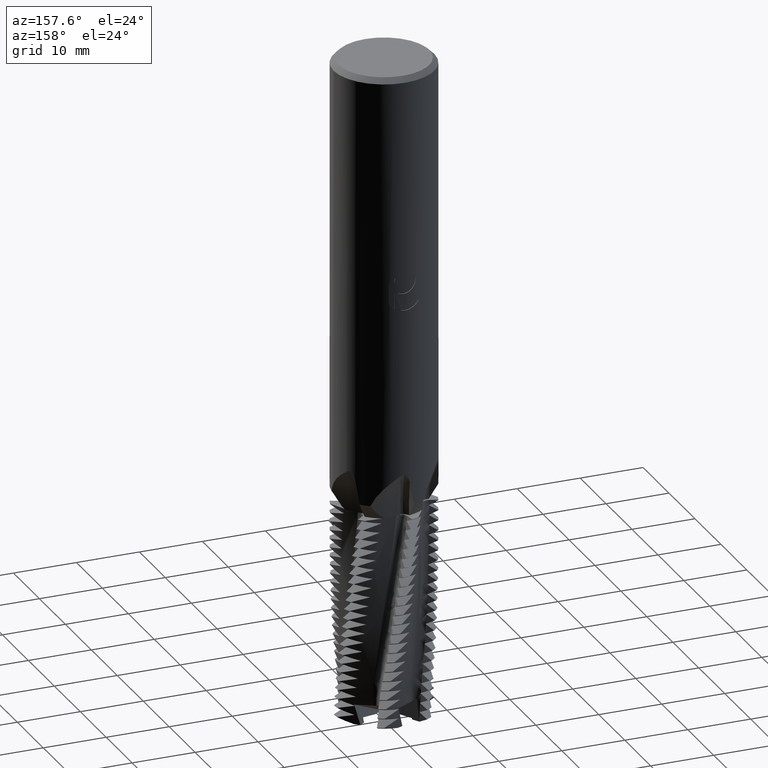
[diagram: clean part render]
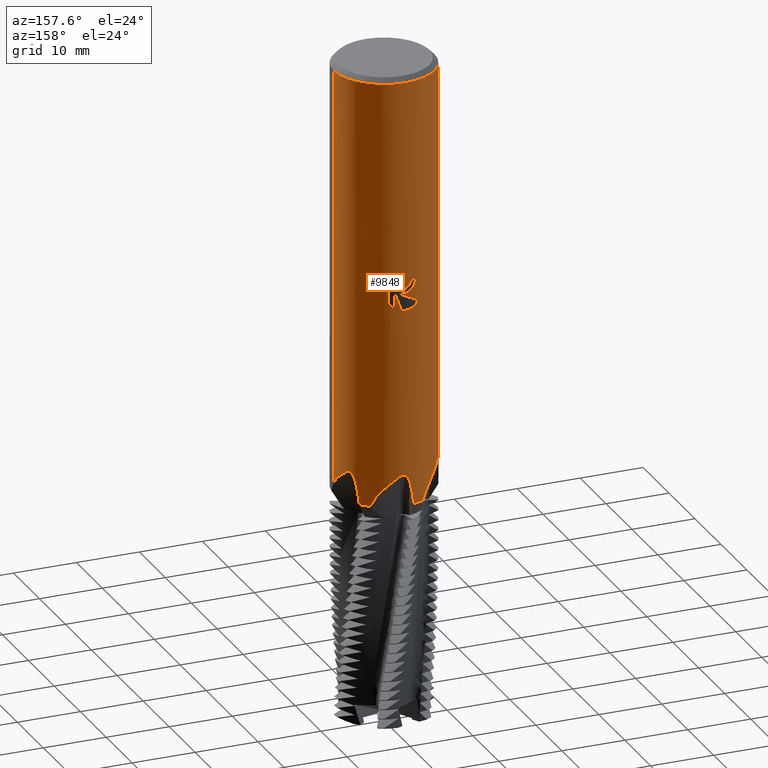
[diagram: same view with one face highlighted and labeled with its STEP entity id]
A machine part, auxiliary view. The second image highlights one B-rep face of the part: STEP entity #9848.
In plain terms, the highlighted cylindrical surface (partial cylindrical patch) has radius 8 mm, axis along (-0, -0, 1).
Its self-contained STEP definition (entity closure, byte-faithful):
#3558=EDGE_CURVE('',#5002,#3954,#10561,.T.);
#3760=VERTEX_POINT('',#10782);
#3790=EDGE_CURVE('',#5252,#5672,#10818,.T.);
#3902=VERTEX_POINT('',#10940);
#3954=VERTEX_POINT('',#10996);
#3968=VERTEX_POINT('',#11010);
#4220=VERTEX_POINT('',#11277);
#4240=VERTEX_POINT('',#11300);
#4420=VERTEX_POINT('',#11498);
#4524=EDGE_CURVE('',#4806,#9842,#11611,.T.);
#4612=EDGE_CURVE('',#6704,#3968,#11710,.T.);
#4806=VERTEX_POINT('',#11917);
#4970=VERTEX_POINT('',#12095);
#5002=VERTEX_POINT('',#12132);
#5050=EDGE_CURVE('',#3902,#6976,#12187,.T.);
#5070=VERTEX_POINT('',#12209);
#5142=EDGE_CURVE('',#9724,#9842,#12285,.T.);
#5242=EDGE_CURVE('',#6578,#8522,#12397,.T.);
#5252=VERTEX_POINT('',#12408);
#5348=VERTEX_POINT('',#12507);
#5446=EDGE_CURVE('',#3968,#9724,#12614,.T.);
#5672=VERTEX_POINT('',#12854);
#5768=EDGE_CURVE('',#7158,#8456,#12955,.T.);
#5886=EDGE_CURVE('',#5070,#6704,#13084,.T.);
#5892=EDGE_CURVE('',#9770,#8562,#13090,.T.);
#6020=EDGE_CURVE('',#8522,#7948,#13229,.T.);
#6288=EDGE_CURVE('',#6968,#8002,#13515,.T.);
#6362=EDGE_CURVE('',#8562,#9298,#13594,.T.);
#6534=EDGE_CURVE('',#10364,#5348,#13779,.T.);
#6574=EDGE_CURVE('',#9522,#4970,#13823,.T.);
#6578=VERTEX_POINT('',#13827);
#6586=VERTEX_POINT('',#13835);
#6704=VERTEX_POINT('',#13964);
#6872=EDGE_CURVE('',#9770,#4240,#14141,.T.);
#6952=EDGE_CURVE('',#7948,#7962,#14228,.T.);
#6968=VERTEX_POINT('',#14246);
#6976=VERTEX_POINT('',#14254);
#6980=EDGE_CURVE('',#7306,#4970,#14258,.T.);
#6984=EDGE_CURVE('',#6586,#4420,#14262,.T.);
#7092=EDGE_CURVE('',#3760,#6578,#14379,.T.);
#7158=VERTEX_POINT('',#14450);
#7306=VERTEX_POINT('',#14613);
#7572=EDGE_CURVE('',#8456,#4240,#14910,.T.);
#7712=EDGE_CURVE('',#8002,#3760,#15060,.T.);
#7736=EDGE_CURVE('',#4220,#6968,#15085,.T.);
#7948=VERTEX_POINT('',#15315);
#7962=VERTEX_POINT('',#15332);
#8002=VERTEX_POINT('',#15373);
#8376=EDGE_CURVE('',#4420,#3902,#15785,.T.);
#8456=VERTEX_POINT('',#15871);
#8522=VERTEX_POINT('',#15945);
#8562=VERTEX_POINT('',#15991);
#8584=EDGE_CURVE('',#9522,#5672,#16013,.T.);
#8928=EDGE_CURVE('',#4806,#10246,#16381,.T.);
#9262=EDGE_CURVE('',#5070,#5348,#16752,.T.);
#9298=VERTEX_POINT('',#16791);
#9376=EDGE_CURVE('',#5252,#10364,#16875,.T.);
#9522=VERTEX_POINT('',#17035);
#9532=EDGE_CURVE('',#10246,#7158,#17046,.T.);
#9722=EDGE_CURVE('',#3954,#6586,#17257,.T.);
#9724=VERTEX_POINT('',#17259);
#9770=VERTEX_POINT('',#17306);
#9842=VERTEX_POINT('',#17385);
#9848=ADVANCED_FACE('',(#17391,#17392),#17393,.T.);
#10038=EDGE_CURVE('',#9298,#7306,#17602,.T.);
#10192=EDGE_CURVE('',#7962,#5002,#17770,.T.);
#10246=VERTEX_POINT('',#17831);
#10288=EDGE_CURVE('',#6976,#4220,#17875,.T.);
#10364=VERTEX_POINT('',#17955);
#10561=ELLIPSE('',#18253,8.91942745634288,8.0);
#10782=CARTESIAN_POINT('',(-1.8802245565249E-016,8.0,-33.8191445531285));
#10818=LINE('',#19436,#19437);
#10940=CARTESIAN_POINT('',(1.55299694437864,7.84781501379528,-34.3464767267274));
#10996=CARTESIAN_POINT('',(-2.37698266952416,7.63871411880179,-36.2170318033723));
#11010=CARTESIAN_POINT('',(6.97791354918908,3.91263625961367,-63.817694354937));
#11277=CARTESIAN_POINT('',(2.37726233655258,7.63862708758639,-36.0714056869233));
#11300=CARTESIAN_POINT('',(-1.4976536572308,7.85856434235816,-68.7045710167406));
#11498=CARTESIAN_POINT('',(0.515738892185806,7.98335852853215,-37.3330362615963));
#11611=CIRCLE('',#22049,8.0);
#11710=B_SPLINE_CURVE_WITH_KNOTS('',3,(#22424,#22425,#22426,#22427,#22428,#22429,#22430,#22431,#22432,#22433,#22434,#22435,#22436,#22437,#22438,#22439,#22440,#22441,#22442,#22443,#22444,#22445,#22446,#22447,#22448,#22449,#22450,#22451,#22452,#22453,#22454,#22455,#22456,#22457,#22458,#22459),.UNSPECIFIED.,.F.,.F.,(4,2,2,2,2,2,2,2,2,2,2,2,2,2,2,2,2,4),(0.0,0.157815562105349,0.466565409330984,1.19660584265931,2.75589115525819,3.48400899364296,4.01480035797233,4.37946236362999,4.6568810433974,4.91748751627334,5.22104721463338,5.66473858694207,6.3444516261689,7.33499248970474,8.84830442451659,9.7887735366134,10.1440992564661,10.2647681078589),.UNSPECIFIED.);
#11917=CARTESIAN_POINT('',(4.80586229631507,6.39559907974672,-68.7045710167407));
#12095=CARTESIAN_POINT('',(-7.55454318637212,2.63227605794655,-68.7045710167407));
#12132=CARTESIAN_POINT('',(1.01889250750651,7.9348508529239,-34.5428088293916));
#12187=LINE('',#24718,#24719);
#12209=CARTESIAN_POINT('',(8.0,6.09330457802208E-010,-67.0434697043448));
#12285=B_SPLINE_CURVE_WITH_KNOTS('',3,(#25031,#25032,#25033,#25034,#25035,#25036,#25037,#25038,#25039,#25040,#25041,#25042,#25043,#25044,#25045,#25046,#25047,#25048),.UNSPECIFIED.,.F.,.F.,(4,2,2,2,2,2,2,2,4),(0.0,2.67743050786404,5.35486101572808,8.03229152359211,10.7097220314562,13.3871525393222,16.0645830471883,18.7420135550543,21.4194440629204),.UNSPECIFIED.);
#12397=B_SPLINE_CURVE_WITH_KNOTS('',3,(#25475,#25476,#25477,#25478,#25479,#25480,#25481,#25482,#25483,#25484,#25485,#25486,#25487,#25488,#25489,#25490,#25491,#25492,#25493,#25494,#25495,#25496,#25497,#25498,#25499,#25500,#25501),.UNSPECIFIED.,.F.,.F.,(4,2,3,2,2,2,2,2,2,2,2,2,4),(-0.964810488509541,-0.482405244254771,0.0,0.482405244254771,0.964810488509542,1.44846427387298,1.93211805923641,2.41366917639697,2.89522029355752,3.37739163392261,3.8595629742877,4.34173431465278,4.82390565501787),.UNSPECIFIED.);
#12408=CARTESIAN_POINT('',(-8.0,-9.79684789774845E-016,-0.799999999999997));
#12507=CARTESIAN_POINT('',(8.0,9.79685376340959E-016,-0.799999999999997));
#12614=B_SPLINE_CURVE_WITH_KNOTS('',3,(#26246,#26247,#26248,#26249,#26250,#26251,#26252,#26253,#26254,#26255,#26256,#26257,#26258,#26259,#26260,#26261,#26262,#26263,#26264,#26265,#26266,#26267,#26268,#26269,#26270,#26271,#26272,#26273,#26274,#26275,#26276,#26277,#26278,#26279,#26280,#26281),.UNSPECIFIED.,.F.,.F.,(4,2,2,2,2,2,2,2,2,2,2,2,2,2,2,2,2,4),(0.0,0.157815562105349,0.466565409330984,1.19660584265931,2.75589115525819,3.48400899364296,4.01480035797233,4.37946236362999,4.6568810433974,4.91748751627334,5.22104721463338,5.66473858694207,6.3444516261689,7.33499248970474,8.84830442451659,9.7887735366134,10.1440992564661,10.2647681078589),.UNSPECIFIED.);
#12854=CARTESIAN_POINT('',(-8.0,-6.09986703106225E-010,-67.043469704343));
#12955=B_SPLINE_CURVE_WITH_KNOTS('',3,(#27609,#27610,#27611,#27612,#27613,#27614,#27615,#27616,#27617,#27618,#27619,#27620,#27621,#27622,#27623,#27624,#27625,#27626,#27627,#27628,#27629,#27630,#27631,#27632,#27633,#27634,#27635,#27636,#27637,#27638,#27639,#27640,#27641,#27642,#27643,#27644),.UNSPECIFIED.,.F.,.F.,(4,2,2,2,2,2,2,2,2,2,2,2,2,2,2,2,2,4),(0.0,0.157408050472072,0.464719535030816,1.1901755937542,2.75286233472595,3.48006284737341,4.00837097079166,4.37244889220426,4.64944836108742,4.90930479053725,5.21108687261704,5.65093506910702,6.32325045934717,7.30204643202879,8.77923479512313,9.72838035789737,10.0941222077446,10.2225123220661),.UNSPECIFIED.);
#13084=B_SPLINE_CURVE_WITH_KNOTS('',3,(#28090,#28091,#28092,#28093,#28094,#28095,#28096,#28097,#28098,#28099),.UNSPECIFIED.,.F.,.F.,(4,2,2,2,4),(0.0,2.75342930571083,5.46399056086642,7.07225821111837,8.78411463224626),.UNSPECIFIED.);
#13090=B_SPLINE_CURVE_WITH_KNOTS('',3,(#28107,#28108,#28109,#28110,#28111,#28112,#28113,#28114,#28115,#28116),.UNSPECIFIED.,.F.,.F.,(4,2,2,2,4),(0.0,2.58425688319315,5.64734236203495,7.16510144745819,8.66638798212551),.UNSPECIFIED.);
#13229=CIRCLE('',#28593,8.0);
#13515=B_SPLINE_CURVE_WITH_KNOTS('',3,(#29559,#29560,#29561,#29562,#29563,#29564,#29565,#29566,#29567,#29568),.UNSPECIFIED.,.F.,.F.,(4,2,2,2,4),(1.10176702782719,1.65265054174078,2.20353405565438,2.75364233968908,3.30375062372378),.UNSPECIFIED.);
#13594=B_SPLINE_CURVE_WITH_KNOTS('',3,(#29783,#29784,#29785,#29786,#29787,#29788,#29789,#29790,#29791,#29792,#29793,#29794,#29795,#29796,#29797,#29798,#29799,#29800,#29801,#29802,#29803,#29804,#29805,#29806,#29807,#29808,#29809,#29810,#29811,#29812,#29813,#29814,#29815,#29816,#29817,#29818),.UNSPECIFIED.,.F.,.F.,(4,2,2,2,2,2,2,2,2,2,2,2,2,2,2,2,2,4),(0.0,0.160213799384692,0.47774892752722,1.23626283899538,2.77698913136736,3.50605406287483,4.02416127779537,4.39552597648045,4.67392566861984,4.93432421533096,5.23682030147333,5.6798558798747,6.36173216157633,7.35795833366179,9.01150108649459,9.8879404359031,10.2112185755558,10.3017279144792),.UNSPECIFIED.);
#13779=CIRCLE('',#30484,8.0);
#13823=CIRCLE('',#30592,8.0);
#13827=CARTESIAN_POINT('',(-0.864673678362767,7.95313393763406,-33.1436155518197));
#13835=CARTESIAN_POINT('',(4.72523410217066E-015,8.0,-37.3884895257048));
#13964=CARTESIAN_POINT('',(7.30973835412202,3.25080377664933,-64.0423889109165));
#14141=CIRCLE('',#31494,8.0);
#14228=B_SPLINE_CURVE_WITH_KNOTS('',3,(#31761,#31762,#31763,#31764,#31765,#31766,#31767,#31768,#31769,#31770,#31771,#31772,#31773,#31774,#31775,#31776,#31777,#31778,#31779,#31780,#31781,#31782,#31783,#31784),.UNSPECIFIED.,.F.,.F.,(4,2,2,2,2,2,2,2,2,2,2,4),(5.97435832235815,6.37236227205793,6.77036622175771,7.16837017145749,7.56637412115727,7.96437807085704,8.3613675291748,8.75835698749257,9.15534644581033,9.55233590412809,9.95206539171455,10.351794879301),.UNSPECIFIED.);
#14246=CARTESIAN_POINT('',(2.37726233655257,7.63862708758639,-32.9156416642848));
#14254=CARTESIAN_POINT('',(1.55299694437863,7.84781501379528,-36.9044180932069));
#14258=B_SPLINE_CURVE_WITH_KNOTS('',3,(#31836,#31837,#31838,#31839,#31840,#31841,#31842,#31843,#31844,#31845,#31846,#31847,#31848,#31849,#31850,#31851,#31852,#31853,#31854,#31855,#31856,#31857,#31858,#31859,#31860,#31861,#31862,#31863,#31864,#31865,#31866,#31867,#31868,#31869),.UNSPECIFIED.,.F.,.F.,(4,2,2,2,2,2,2,2,2,2,2,2,2,2,2,2,4),(0.0,2.28232419335133,4.56464838670266,6.84697258005399,9.12929677340532,11.4116209667567,13.693945160108,15.9762693534593,18.2585935468106,20.540917740161,22.8232419335114,25.1055661268618,27.3878903202122,29.6702145135626,31.952538706913,34.2348629002634,36.5171870936137),.UNSPECIFIED.);
#14262=B_SPLINE_CURVE_WITH_KNOTS('',3,(#31874,#31875,#31876,#31877,#31878,#31879,#31880,#31881,#31882,#31883,#31884,#31885,#31886,#31887,#31888,#31889),.UNSPECIFIED.,.F.,.F.,(4,2,2,2,2,2,2,4),(10.4658549410191,11.0169082977644,11.5680368003315,12.1191653028987,12.6702938054658,13.2214223080329,13.7715306240718,14.3216389401107),.UNSPECIFIED.);
#14379=B_SPLINE_CURVE_WITH_KNOTS('',3,(#32251,#32252,#32253,#32254,#32255,#32256,#32257,#32258,#32259,#32260,#32261,#32262,#32263,#32264,#32265,#32266,#32267,#32268,#32269,#32270,#32271,#32272,#32273,#32274,#32275,#32276,#32277),.UNSPECIFIED.,.F.,.F.,(4,2,3,2,2,2,2,2,2,2,2,2,4),(-0.964810488509541,-0.482405244254771,0.0,0.482405244254771,0.964810488509542,1.44846427387298,1.93211805923641,2.41366917639697,2.89522029355752,3.37739163392261,3.8595629742877,4.34173431465278,4.82390565501787),.UNSPECIFIED.);
#14450=CARTESIAN_POINT('',(0.100514378000988,7.99936852881621,-63.817694354937));
#14613=CARTESIAN_POINT('',(-7.31908434808403,3.22970653552787,-65.2931701812471));
#14910=B_SPLINE_CURVE_WITH_KNOTS('',3,(#33981,#33982,#33983,#33984,#33985,#33986,#33987,#33988,#33989,#33990,#33991,#33992,#33993,#33994,#33995,#33996,#33997,#33998,#33999,#34000,#34001,#34002,#34003,#34004,#34005,#34006,#34007,#34008,#34009,#34010,#34011,#34012,#34013,#34014),.UNSPECIFIED.,.F.,.F.,(4,2,2,2,2,2,2,2,2,2,2,2,2,2,2,2,4),(0.0,2.1655676774591,4.33113535491819,6.49670303237729,8.66227070983639,10.8278383872955,12.9934060647546,15.1589737422137,17.3245414196728,19.4901090971319,21.655676774591,23.8212444520501,25.9868121295092,28.1523798069683,30.3179474844274,32.4835151618865,34.6490828393456),.UNSPECIFIED.);
#15060=B_SPLINE_CURVE_WITH_KNOTS('',3,(#34467,#34468,#34469,#34470,#34471,#34472,#34473,#34474,#34475,#34476,#34477,#34478,#34479,#34480,#34481,#34482,#34483,#34484,#34485,#34486,#34487,#34488,#34489,#34490,#34491,#34492,#34493),.UNSPECIFIED.,.F.,.F.,(4,2,3,2,2,2,2,2,2,2,2,2,4),(-0.964810488509541,-0.482405244254771,0.0,0.482405244254771,0.964810488509542,1.44846427387298,1.93211805923641,2.41366917639697,2.89522029355752,3.37739163392261,3.8595629742877,4.34173431465278,4.82390565501787),.UNSPECIFIED.);
#15085=LINE('',#34550,#34551);
#15315=CARTESIAN_POINT('',(-1.84013049468778,7.78549418871533,-32.5637727973313));
#15332=CARTESIAN_POINT('',(-4.41973440860562E-016,8.0,-34.6668091631122));
#15373=CARTESIAN_POINT('',(1.42121195712839,7.87274771429361,-32.0000004922186));
#15785=ELLIPSE('',#36751,24.3839565869582,8.0);
#15871=CARTESIAN_POINT('',(-0.862534267506258,7.95336624564577,-65.2931701812471));
#15945=CARTESIAN_POINT('',(-0.999704870891653,7.93729111039248,-32.5637727973313));
#15991=CARTESIAN_POINT('',(-6.47014783035771,4.70501722136247,-64.0423889109165));
#16013=B_SPLINE_CURVE_WITH_KNOTS('',3,(#37453,#37454,#37455,#37456,#37457,#37458,#37459,#37460,#37461,#37462),.UNSPECIFIED.,.F.,.F.,(4,2,2,2,4),(0.0,2.75355656635162,5.46414757636226,7.07211212143594,8.78362145258617),.UNSPECIFIED.);
#16381=B_SPLINE_CURVE_WITH_KNOTS('',3,(#38748,#38749,#38750,#38751,#38752,#38753,#38754,#38755),.UNSPECIFIED.,.F.,.F.,(4,2,2,4),(0.0,2.69689248142475,4.92010914299087,7.29675035455776),.UNSPECIFIED.);
#16752=LINE('',#40190,#40191);
#16791=CARTESIAN_POINT('',(-6.8773991711881,4.08673226920254,-63.817694354937));
#16875=CIRCLE('',#40571,8.0);
#17035=CARTESIAN_POINT('',(-7.94168242363858,0.964199295825321,-68.7045710167407));
#17046=B_SPLINE_CURVE_WITH_KNOTS('',3,(#41172,#41173,#41174,#41175,#41176,#41177,#41178,#41179,#41180,#41181,#41182,#41183,#41184,#41185,#41186,#41187,#41188,#41189,#41190,#41191,#41192,#41193,#41194,#41195,#41196,#41197,#41198,#41199,#41200,#41201,#41202,#41203,#41204,#41205,#41206,#41207),.UNSPECIFIED.,.F.,.F.,(4,2,2,2,2,2,2,2,2,2,2,2,2,2,2,2,2,4),(0.0,0.157408050472072,0.464719535030816,1.1901755937542,2.75286233472595,3.48006284737341,4.00837097079166,4.37244889220426,4.64944836108742,4.90930479053725,5.21108687261704,5.65093506910702,6.32325045934717,7.30204643202879,8.77923479512313,9.72838035789737,10.0941222077446,10.2225123220661),.UNSPECIFIED.);
#17257=B_SPLINE_CURVE_WITH_KNOTS('',3,(#42110,#42111,#42112,#42113,#42114,#42115,#42116,#42117,#42118,#42119,#42120,#42121,#42122,#42123,#42124,#42125),.UNSPECIFIED.,.F.,.F.,(4,2,2,2,2,2,2,4),(10.4658549410191,11.0169082977644,11.5680368003315,12.1191653028987,12.6702938054658,13.2214223080329,13.7715306240718,14.3216389401107),.UNSPECIFIED.);
#17259=CARTESIAN_POINT('',(6.45655008057777,4.72365971011791,-65.2931701812472));
#17306=CARTESIAN_POINT('',(-3.13582012732346,7.35979837557206,-68.7045710167407));
#17385=CARTESIAN_POINT('',(6.05688952914132,5.22628828441162,-68.7045710167407));
#17391=FACE_OUTER_BOUND('',#42564,.T.);
#17392=FACE_BOUND('',#42565,.T.);
#17393=CYLINDRICAL_SURFACE('',#42566,8.0);
#17602=B_SPLINE_CURVE_WITH_KNOTS('',3,(#43251,#43252,#43253,#43254,#43255,#43256,#43257,#43258,#43259,#43260,#43261,#43262,#43263,#43264,#43265,#43266,#43267,#43268,#43269,#43270,#43271,#43272,#43273,#43274,#43275,#43276,#43277,#43278,#43279,#43280,#43281,#43282,#43283,#43284,#43285,#43286),.UNSPECIFIED.,.F.,.F.,(4,2,2,2,2,2,2,2,2,2,2,2,2,2,2,2,2,4),(0.0,0.160213799384692,0.47774892752722,1.23626283899538,2.77698913136736,3.50605406287483,4.02416127779537,4.39552597648045,4.67392566861984,4.93432421533096,5.23682030147333,5.6798558798747,6.36173216157633,7.35795833366179,9.01150108649459,9.8879404359031,10.2112185755558,10.3017279144792),.UNSPECIFIED.);
#17770=B_SPLINE_CURVE_WITH_KNOTS('',3,(#43866,#43867,#43868,#43869,#43870,#43871,#43872,#43873,#43874,#43875,#43876,#43877,#43878,#43879,#43880,#43881,#43882,#43883,#43884,#43885,#43886,#43887,#43888,#43889),.UNSPECIFIED.,.F.,.F.,(4,2,2,2,2,2,2,2,2,2,2,4),(5.97435832235815,6.37236227205793,6.77036622175771,7.16837017145749,7.56637412115727,7.96437807085704,8.3613675291748,8.75835698749257,9.15534644581033,9.55233590412809,9.95206539171455,10.351794879301),.UNSPECIFIED.);
#17831=CARTESIAN_POINT('',(0.839590523764307,7.95582099801178,-64.0423889109165));
#17875=B_SPLINE_CURVE_WITH_KNOTS('',3,(#44295,#44296,#44297,#44298,#44299,#44300,#44301,#44302,#44303,#44304),.UNSPECIFIED.,.F.,.F.,(4,2,2,2,4),(14.3216374191493,14.8717456846904,15.4218539502316,15.9727374449435,16.5236209396554),.UNSPECIFIED.);
#17955=CARTESIAN_POINT('',(0.0,8.0,-0.799999999999997));
#18253=AXIS2_PLACEMENT_3D('',#44944,#44945,#44946);
#19436=CARTESIAN_POINT('',(-8.0,-9.79684789774845E-016,-58.3522855083703));
#19437=VECTOR('',#45237,1.0);
#22049=AXIS2_PLACEMENT_3D('',#45892,#45893,#45894);
#22424=CARTESIAN_POINT('',(6.85461610094413,4.12483188853527,-68.7050402273286));
#22425=CARTESIAN_POINT('',(6.87958434318494,4.08333984233775,-68.6844902219803));
#22426=CARTESIAN_POINT('',(6.90256373593188,4.04428669029518,-68.6538734100097));
#22427=CARTESIAN_POINT('',(6.96258196405166,3.94065136189668,-68.5550438085012));
#22428=CARTESIAN_POINT('',(6.99821841301367,3.87668147122675,-68.4685879449578));
#22429=CARTESIAN_POINT('',(7.09628690949481,3.69641870149929,-68.1919274345003));
#22430=CARTESIAN_POINT('',(7.16159729627556,3.5676221817073,-67.9288025708765));
#22431=CARTESIAN_POINT('',(7.33490782236493,3.20530217415906,-67.036758054112));
#22432=CARTESIAN_POINT('',(7.42568272616028,2.97659369263621,-66.2293824883475));
#22433=CARTESIAN_POINT('',(7.44166963413467,2.93628057613582,-65.0986025483861));
#22434=CARTESIAN_POINT('',(7.42905005761056,2.96889884037864,-64.7875740814992));
#22435=CARTESIAN_POINT('',(7.38199616806277,3.08364505339426,-64.3489950531497));
#22436=CARTESIAN_POINT('',(7.35432816494321,3.14980897754041,-64.1949505266446));
#22437=CARTESIAN_POINT('',(7.29560254035292,3.28293997471992,-63.9920713658266));
#22438=CARTESIAN_POINT('',(7.26613052325702,3.34822341908564,-63.9177296999612));
#22439=CARTESIAN_POINT('',(7.20192867501465,3.48373663441629,-63.8208535925601));
#22440=CARTESIAN_POINT('',(7.17095098943556,3.54728228010769,-63.7914878311909));
#22441=CARTESIAN_POINT('',(7.10450057410136,3.67847053686846,-63.7647653275251));
#22442=CARTESIAN_POINT('',(7.07117524682894,3.74212888134246,-63.7662925716166));
#22443=CARTESIAN_POINT('',(6.99802748441267,3.87742961229883,-63.7969019999676));
#22444=CARTESIAN_POINT('',(6.95950589446314,3.94595628156783,-63.8298366047908));
#22445=CARTESIAN_POINT('',(6.86975855647188,4.10094204913283,-63.9357283857772));
#22446=CARTESIAN_POINT('',(6.82026904019208,4.18219207695683,-64.0207801250163));
#22447=CARTESIAN_POINT('',(6.70929318765759,4.35905316151273,-64.255056563579));
#22448=CARTESIAN_POINT('',(6.64448891592997,4.45658660230286,-64.437150709026));
#22449=CARTESIAN_POINT('',(6.50227886421119,4.66288000167673,-64.9732512087887));
#22450=CARTESIAN_POINT('',(6.43531865353777,4.75295230093216,-65.3589187669767));
#22451=CARTESIAN_POINT('',(6.34077058661899,4.8789023972255,-66.4448518421663));
#22452=CARTESIAN_POINT('',(6.36249519489344,4.85085004328651,-67.106549698546));
#22453=CARTESIAN_POINT('',(6.46863729854357,4.70758976053915,-67.9689570029793));
#22454=CARTESIAN_POINT('',(6.52665100085285,4.62781631909526,-68.257000211391));
#22455=CARTESIAN_POINT('',(6.61850831562082,4.4941434926915,-68.5276622858209));
#22456=CARTESIAN_POINT('',(6.65026519469283,4.44731240118063,-68.6044220056477));
#22457=CARTESIAN_POINT('',(6.70020836240644,4.37124011162183,-68.6765768805336));
#22458=CARTESIAN_POINT('',(6.7137914378747,4.35036988990493,-68.6926497435905));
#22459=CARTESIAN_POINT('',(6.72824351230175,4.32790240638226,-68.7050402273286));
#24718=CARTESIAN_POINT('',(1.55299694437864,7.84781501379528,-35.6254474099672));
#24719=VECTOR('',#46419,1.0);
#25031=CARTESIAN_POINT('',(7.31605709214551,3.2365581447685,-60.2078007069493));
#25032=CARTESIAN_POINT('',(7.17972629778153,3.54472621417169,-61.0342154080674));
#25033=CARTESIAN_POINT('',(7.02461475985823,3.84045478349247,-61.9088151984029));
#25034=CARTESIAN_POINT('',(6.70953402190406,4.36766054467011,-63.7169031738549));
#25035=CARTESIAN_POINT('',(6.55014075052794,4.59883824854068,-64.6505789835086));
#25036=CARTESIAN_POINT('',(6.27307115339835,4.97013434348836,-66.5380904355768));
#25037=CARTESIAN_POINT('',(6.15626721037287,5.11026286959848,-67.4926802417335));
#25038=CARTESIAN_POINT('',(6.00015490628205,5.29268869818762,-69.377386552095));
#25039=CARTESIAN_POINT('',(5.96124800967011,5.33512157004919,-70.3075231640453));
#25040=CARTESIAN_POINT('',(5.96124800967011,5.33512157004919,-72.0924768359554));
#25041=CARTESIAN_POINT('',(6.00015490628211,5.29268869818755,-73.0226134479063));
#25042=CARTESIAN_POINT('',(6.15626721037315,5.11026286959815,-74.9073197582693));
#25043=CARTESIAN_POINT('',(6.27307115339879,4.97013434348783,-75.8619095644266));
#25044=CARTESIAN_POINT('',(6.5501407505287,4.59883824853961,-77.7494210164962));
#25045=CARTESIAN_POINT('',(6.70953402190499,4.3676605446687,-78.6830968261505));
#25046=CARTESIAN_POINT('',(7.02461475985941,3.84045478349034,-80.4911848016037));
#25047=CARTESIAN_POINT('',(7.17972629778278,3.54472621416918,-81.3657845919399));
#25048=CARTESIAN_POINT('',(7.3160570921468,3.23655814476559,-82.1921992930586));
#25475=CARTESIAN_POINT('',(1.18255619528955,7.91211481495196,-31.6687315821247));
#25476=CARTESIAN_POINT('',(1.29555554231088,7.8952257680904,-31.7818824100317));
#25477=CARTESIAN_POINT('',(1.39369958150756,7.87794367201662,-31.9252163447055));
#25478=CARTESIAN_POINT('',(1.52406667062396,7.85376443924462,-32.2397623809734));
#25479=CARTESIAN_POINT('',(1.55626841002923,7.84716691780831,-32.4110062739342));
#25480=CARTESIAN_POINT('',(1.55626841002923,7.84716691780831,-32.5718080220191));
#25481=CARTESIAN_POINT('',(1.55626841002923,7.84716691780831,-32.732609770104));
#25482=CARTESIAN_POINT('',(1.52406667062396,7.85376443924462,-32.9038536630648));
#25483=CARTESIAN_POINT('',(1.39369958150756,7.87794367201662,-33.2183996993327));
#25484=CARTESIAN_POINT('',(1.29555554231088,7.8952257680904,-33.3617336340066));
#25485=CARTESIAN_POINT('',(1.06926438807693,7.92904757333934,-33.5883281420682));
#25486=CARTESIAN_POINT('',(0.925777038397853,7.94782746244184,-33.6867444475369));
#25487=CARTESIAN_POINT('',(0.610856853810376,7.97821273219904,-33.8174946353624));
#25488=CARTESIAN_POINT('',(0.439389509390005,7.98955118135513,-33.8498072926655));
#25489=CARTESIAN_POINT('',(0.117849234644582,8.00074229541986,-33.8498072926655));
#25490=CARTESIAN_POINT('',(-0.0532939916686341,8.00137131130658,-33.8177455749221));
#25491=CARTESIAN_POINT('',(-0.368037859766082,7.99308021011067,-33.6874162661638));
#25492=CARTESIAN_POINT('',(-0.511648925047288,7.98443164543236,-33.5891567143368));
#25493=CARTESIAN_POINT('',(-0.738549247979451,7.9666499652176,-33.3624504744438));
#25494=CARTESIAN_POINT('',(-0.83696731889165,7.95636879454574,-33.218794930785));
#25495=CARTESIAN_POINT('',(-0.967562447790085,7.94154529256518,-32.9038442119892));
#25496=CARTESIAN_POINT('',(-0.999730131263608,7.93728792879808,-32.7325318021408));
#25497=CARTESIAN_POINT('',(-0.999730131263608,7.93728792879808,-32.4110842418974));
#25498=CARTESIAN_POINT('',(-0.967562447790085,7.94154529256518,-32.239771832049));
#25499=CARTESIAN_POINT('',(-0.83696731889165,7.95636879454574,-31.9248211132533));
#25500=CARTESIAN_POINT('',(-0.738549247979453,7.9666499652176,-31.7811655695944));
#25501=CARTESIAN_POINT('',(-0.625026073352632,7.97554652720611,-31.6677394989403));
#26246=CARTESIAN_POINT('',(6.85461610094413,4.12483188853527,-68.7050402273286));
#26247=CARTESIAN_POINT('',(6.87958434318494,4.08333984233775,-68.6844902219803));
#26248=CARTESIAN_POINT('',(6.90256373593188,4.04428669029518,-68.6538734100097));
#26249=CARTESIAN_POINT('',(6.96258196405166,3.94065136189668,-68.5550438085012));
#26250=CARTESIAN_POINT('',(6.99821841301367,3.87668147122675,-68.4685879449578));
#26251=CARTESIAN_POINT('',(7.09628690949481,3.69641870149929,-68.1919274345003));
#26252=CARTESIAN_POINT('',(7.16159729627556,3.5676221817073,-67.9288025708765));
#26253=CARTESIAN_POINT('',(7.33490782236493,3.20530217415906,-67.036758054112));
#26254=CARTESIAN_POINT('',(7.42568272616028,2.97659369263621,-66.2293824883475));
#26255=CARTESIAN_POINT('',(7.44166963413467,2.93628057613582,-65.0986025483861));
#26256=CARTESIAN_POINT('',(7.42905005761056,2.96889884037864,-64.7875740814992));
#26257=CARTESIAN_POINT('',(7.38199616806277,3.08364505339426,-64.3489950531497));
#26258=CARTESIAN_POINT('',(7.35432816494321,3.14980897754041,-64.1949505266446));
#26259=CARTESIAN_POINT('',(7.29560254035292,3.28293997471992,-63.9920713658266));
#26260=CARTESIAN_POINT('',(7.26613052325702,3.34822341908564,-63.9177296999612));
#26261=CARTESIAN_POINT('',(7.20192867501465,3.48373663441629,-63.8208535925601));
#26262=CARTESIAN_POINT('',(7.17095098943556,3.54728228010769,-63.7914878311909));
#26263=CARTESIAN_POINT('',(7.10450057410136,3.67847053686846,-63.7647653275251));
#26264=CARTESIAN_POINT('',(7.07117524682894,3.74212888134246,-63.7662925716166));
#26265=CARTESIAN_POINT('',(6.99802748441267,3.87742961229883,-63.7969019999676));
#26266=CARTESIAN_POINT('',(6.95950589446314,3.94595628156783,-63.8298366047908));
#26267=CARTESIAN_POINT('',(6.86975855647188,4.10094204913283,-63.9357283857772));
#26268=CARTESIAN_POINT('',(6.82026904019208,4.18219207695683,-64.0207801250163));
#26269=CARTESIAN_POINT('',(6.70929318765759,4.35905316151273,-64.255056563579));
#26270=CARTESIAN_POINT('',(6.64448891592997,4.45658660230286,-64.437150709026));
#26271=CARTESIAN_POINT('',(6.50227886421119,4.66288000167673,-64.9732512087887));
#26272=CARTESIAN_POINT('',(6.43531865353777,4.75295230093216,-65.3589187669767));
#26273=CARTESIAN_POINT('',(6.34077058661899,4.8789023972255,-66.4448518421663));
#26274=CARTESIAN_POINT('',(6.36249519489344,4.85085004328651,-67.106549698546));
#26275=CARTESIAN_POINT('',(6.46863729854357,4.70758976053915,-67.9689570029793));
#26276=CARTESIAN_POINT('',(6.52665100085285,4.62781631909526,-68.257000211391));
#26277=CARTESIAN_POINT('',(6.61850831562082,4.4941434926915,-68.5276622858209));
#26278=CARTESIAN_POINT('',(6.65026519469283,4.44731240118063,-68.6044220056477));
#26279=CARTESIAN_POINT('',(6.70020836240644,4.37124011162183,-68.6765768805336));
#26280=CARTESIAN_POINT('',(6.7137914378747,4.35036988990493,-68.6926497435905));
#26281=CARTESIAN_POINT('',(6.72824351230175,4.32790240638226,-68.7050402273286));
#27609=CARTESIAN_POINT('',(-0.144828598063187,7.9986889348932,-68.7050094246521));
#27610=CARTESIAN_POINT('',(-0.096540398963102,7.99956326720385,-68.6845028872405));
#27611=CARTESIAN_POINT('',(-0.0513455568976813,7.99993733275782,-68.6539864156855));
#27612=CARTESIAN_POINT('',(0.0679842604909182,8.00010031671616,-68.5555979098889));
#27613=CARTESIAN_POINT('',(0.140893584676059,7.99899016068588,-68.469664947557));
#27614=CARTESIAN_POINT('',(0.345099853166724,7.9938410605347,-68.1947769425257));
#27615=CARTESIAN_POINT('',(0.488509316223707,7.98608890954011,-67.9336998529468));
#27616=CARTESIAN_POINT('',(0.88947582585973,7.95514096873352,-67.0435179630889));
#27617=CARTESIAN_POINT('',(1.13473700466376,7.91917053053905,-66.2331475493083));
#27618=CARTESIAN_POINT('',(1.17798632972877,7.91280866260126,-65.0993211909484));
#27619=CARTESIAN_POINT('',(1.14348341980814,7.91818069776288,-64.7881720017811));
#27620=CARTESIAN_POINT('',(1.02082289092165,7.93477368559244,-64.3500333184424));
#27621=CARTESIAN_POINT('',(0.950015753276477,7.94385546097205,-64.1963386255486));
#27622=CARTESIAN_POINT('',(0.805859565799582,7.9595282674107,-63.9934011829537));
#27623=CARTESIAN_POINT('',(0.734672969004459,7.9666491107356,-63.918837093212));
#27624=CARTESIAN_POINT('',(0.585317711828708,7.97882168520585,-63.8215136805955));
#27625=CARTESIAN_POINT('',(0.514803534295405,7.98377933165883,-63.7919318444144));
#27626=CARTESIAN_POINT('',(0.367995427958935,7.99184860697263,-63.7648387664402));
#27627=CARTESIAN_POINT('',(0.296236862100087,7.99482906072114,-63.7661811661808));
#27628=CARTESIAN_POINT('',(0.142736136867244,7.99915212317855,-63.7963714887642));
#27629=CARTESIAN_POINT('',(0.0643284844985336,8.00007090313207,-63.8289817089392));
#27630=CARTESIAN_POINT('',(-0.114117407609308,7.9998861176272,-63.933876112577));
#27631=CARTESIAN_POINT('',(-0.208851285411184,7.99769596123893,-64.0180862332865));
#27632=CARTESIAN_POINT('',(-0.416599426342803,7.99013377116203,-64.2499539760587));
#27633=CARTESIAN_POINT('',(-0.533004141959364,7.9828736170465,-64.4300132473839));
#27634=CARTESIAN_POINT('',(-0.782239341947856,7.96304399257888,-64.9601198802205));
#27635=CARTESIAN_POINT('',(-0.894121447987349,7.95013133905419,-65.3415675064988));
#27636=CARTESIAN_POINT('',(-1.05249103518876,7.931044552161,-66.4092539433315));
#27637=CARTESIAN_POINT('',(-1.02316425448721,7.93498057027717,-67.0595564618865));
#27638=CARTESIAN_POINT('',(-0.853742910539964,7.95459454035317,-67.9318259184497));
#27639=CARTESIAN_POINT('',(-0.755857948344485,7.96508413429826,-68.2295274559306));
#27640=CARTESIAN_POINT('',(-0.593128922775878,7.97811130680401,-68.5130683735394));
#27641=CARTESIAN_POINT('',(-0.534946288168747,7.98240561090029,-68.5955365565806));
#27642=CARTESIAN_POINT('',(-0.439891055392903,7.98793514763959,-68.6736987383031));
#27643=CARTESIAN_POINT('',(-0.413026031444922,7.98938376267832,-68.69153136211));
#27644=CARTESIAN_POINT('',(-0.384017987722878,7.99077782103251,-68.7050094246521));
#28090=CARTESIAN_POINT('',(7.94165871286886,-0.964394570865093,-68.7050402273286));
#28091=CARTESIAN_POINT('',(7.98443248640311,-0.612158337343124,-67.8585918760543));
#28092=CARTESIAN_POINT('',(8.02572713982676,-0.0936977855734643,-67.0910826642141));
#28093=CARTESIAN_POINT('',(7.93661005742358,1.19091848666212,-65.6729681320178));
#28094=CARTESIAN_POINT('',(7.80746933909981,1.92996764402329,-65.043302402446));
#28095=CARTESIAN_POINT('',(7.36248247349013,3.16760455396156,-64.0963170097506));
#28096=CARTESIAN_POINT('',(7.14844555409011,3.62879810571986,-63.7658348395012));
#28097=CARTESIAN_POINT('',(6.60365383060259,4.54927478595719,-63.1251188714579));
#28098=CARTESIAN_POINT('',(6.26506061557977,5.00844495702872,-62.8158865679993));
#28099=CARTESIAN_POINT('',(5.87165070385439,5.43357322688545,-62.5397792169003));
#28107=CARTESIAN_POINT('',(-3.13565103790753,7.35987041791289,-68.7050094246521));
#28108=CARTESIAN_POINT('',(-3.44203055127125,7.22933833181334,-67.910568995941));
#28109=CARTESIAN_POINT('',(-3.86769436776,7.02583580061612,-67.1997080950284));
#28110=CARTESIAN_POINT('',(-4.90809476765399,6.35312380277927,-65.7724962699934));
#28111=CARTESIAN_POINT('',(-5.53474773493368,5.84525914670909,-65.0883841754648));
#28112=CARTESIAN_POINT('',(-6.39805800012038,4.8230062877399,-64.1257376322199));
#28113=CARTESIAN_POINT('',(-6.66447870603616,4.45000865851887,-63.82507770111));
#28114=CARTESIAN_POINT('',(-7.13419487741128,3.64916617592451,-63.2596923764229));
#28115=CARTESIAN_POINT('',(-7.33870813226402,3.2210265581209,-62.9938835471211));
#28116=CARTESIAN_POINT('',(-7.50532724646233,2.76948784498329,-62.7487763105353));
#28593=AXIS2_PLACEMENT_3D('',#47188,#47189,#47190);
#29559=CARTESIAN_POINT('',(2.62263118899068,7.55789690631814,-33.3808023178654));
#29560=CARTESIAN_POINT('',(2.54849197267335,7.58362359316335,-33.2026998572166));
#29561=CARTESIAN_POINT('',(2.45644112465236,7.61434223861863,-33.0323603946951));
#29562=CARTESIAN_POINT('',(2.24432703707812,7.67953819407931,-32.7177173214303));
#29563=CARTESIAN_POINT('',(2.12424421931763,7.71394811789096,-32.5734129502618));
#29564=CARTESIAN_POINT('',(1.86888667808731,7.77975723850026,-32.3181705575833));
#29565=CARTESIAN_POINT('',(1.72466527652434,7.81353024235932,-32.1982250826885));
#29566=CARTESIAN_POINT('',(1.4101009193921,7.87637864510524,-31.9862934035856));
#29567=CARTESIAN_POINT('',(1.23975707546904,7.90539615960291,-31.8942913565532));
#29568=CARTESIAN_POINT('',(1.06166315427788,7.92924153666974,-31.8202052682893));
#29783=CARTESIAN_POINT('',(-6.99948211361863,3.87391922232934,-68.7050094246521));
#29784=CARTESIAN_POINT('',(-6.97567834383679,3.91692839502047,-68.6841373646711));
#29785=CARTESIAN_POINT('',(-6.95301727853549,3.95692213237973,-68.6528850106189));
#29786=CARTESIAN_POINT('',(-6.89198375191048,4.06290132690756,-68.5513011714627));
#29787=CARTESIAN_POINT('',(-6.85340926386427,4.12730622300415,-68.4616236537262));
#29788=CARTESIAN_POINT('',(-6.74317587885568,4.30716746105812,-68.1739395661519));
#29789=CARTESIAN_POINT('',(-6.66139654551344,4.43205384125593,-67.8980306683131));
#29790=CARTESIAN_POINT('',(-6.43508348014511,4.76036773090034,-66.9934775021687));
#29791=CARTESIAN_POINT('',(-6.28931665074369,4.94421497313368,-66.2051745757835));
#29792=CARTESIAN_POINT('',(-6.26401320046844,4.97617423937042,-65.0953666773202));
#29793=CARTESIAN_POINT('',(-6.28586182317849,4.94903870221304,-64.7871107789365));
#29794=CARTESIAN_POINT('',(-6.36015934415768,4.85292900117577,-64.3563539017556));
#29795=CARTESIAN_POINT('',(-6.40177671200221,4.79834244878689,-64.2061382274303));
#29796=CARTESIAN_POINT('',(-6.48572607547049,4.68389464064009,-64.0020263016171));
#29797=CARTESIAN_POINT('',(-6.5278453571977,4.62543605785131,-63.9249256553693));
#29798=CARTESIAN_POINT('',(-6.61367294279705,4.50150001033449,-63.8246060758283));
#29799=CARTESIAN_POINT('',(-6.65327787244233,4.44293599437806,-63.7940091722458));
#29800=CARTESIAN_POINT('',(-6.73386860657719,4.31973102776378,-63.7651631397482));
#29801=CARTESIAN_POINT('',(-6.772443077596,4.25900222320565,-63.765723829481));
#29802=CARTESIAN_POINT('',(-6.85333871378705,4.12778521173801,-63.7945488696661));
#29803=CARTESIAN_POINT('',(-6.89357840091112,4.06003800198196,-63.8266417184569));
#29804=CARTESIAN_POINT('',(-6.98348713859744,3.90414449736506,-63.9310260265329));
#29805=CARTESIAN_POINT('',(-7.02944469225385,3.82018186779722,-64.0156053181286));
#29806=CARTESIAN_POINT('',(-7.12810066237154,3.63407260173572,-64.2497611899021));
#29807=CARTESIAN_POINT('',(-7.18076889839372,3.52805414539184,-64.4328432794435));
#29808=CARTESIAN_POINT('',(-7.28960463999269,3.29913738248212,-64.9737828164896));
#29809=CARTESIAN_POINT('',(-7.3345159781184,3.19511149051463,-65.3642057777618));
#29810=CARTESIAN_POINT('',(-7.3993518918448,3.04306283554316,-66.5213515547038));
#29811=CARTESIAN_POINT('',(-7.37864820233336,3.09414195411252,-67.2454513278113));
#29812=CARTESIAN_POINT('',(-7.2957132407198,3.28293637132299,-68.0831797692167));
#29813=CARTESIAN_POINT('',(-7.25595589606741,3.37107911921681,-68.3356515815722));
#29814=CARTESIAN_POINT('',(-7.18799656435305,3.51204835679593,-68.567312569107));
#29815=CARTESIAN_POINT('',(-7.16500574669449,3.55900375906294,-68.6297940305817));
#29816=CARTESIAN_POINT('',(-7.12928952402869,3.62953577342079,-68.6853217275996));
#29817=CARTESIAN_POINT('',(-7.12100259574809,3.64577694308038,-68.6961127176079));
#29818=CARTESIAN_POINT('',(-7.11222558287283,3.66281957763813,-68.7050094246521));
#30484=AXIS2_PLACEMENT_3D('',#47584,#47585,#47586);
#30592=AXIS2_PLACEMENT_3D('',#47632,#47633,#47634);
#31494=AXIS2_PLACEMENT_3D('',#47873,#47874,#47875);
#31761=CARTESIAN_POINT('',(-1.80066688726694,7.79471607956957,-32.17425230141));
#31762=CARTESIAN_POINT('',(-1.82743911656418,7.78853139417922,-32.3103895510336));
#31763=CARTESIAN_POINT('',(-1.84019380845319,7.78547922399967,-32.4474242132625));
#31764=CARTESIAN_POINT('',(-1.84019380845319,7.78547922399967,-32.712760179729));
#31765=CARTESIAN_POINT('',(-1.82743911656418,7.78853139417922,-32.8497948419579));
#31766=CARTESIAN_POINT('',(-1.77389465796969,7.80090076495993,-33.1220693412051));
#31767=CARTESIAN_POINT('',(-1.73311830505653,7.8102068374805,-33.2573123213867));
#31768=CARTESIAN_POINT('',(-1.62548335972023,7.83331561935002,-33.5164435853485));
#31769=CARTESIAN_POINT('',(-1.55853945482656,7.84711015906766,-33.6405473605865));
#31770=CARTESIAN_POINT('',(-1.40399363953698,7.87622910664816,-33.8699427595786));
#31771=CARTESIAN_POINT('',(-1.31638018744831,7.8915182854816,-33.9752310779728));
#31772=CARTESIAN_POINT('',(-1.12997169930445,7.92035581293319,-34.1613603555721));
#31773=CARTESIAN_POINT('',(-1.02477994291684,7.93493101571664,-34.2486753169313));
#31774=CARTESIAN_POINT('',(-0.795590570189963,7.96117703609942,-34.4027137477073));
#31775=CARTESIAN_POINT('',(-0.671596175904771,7.97281535379254,-34.469447546757));
#31776=CARTESIAN_POINT('',(-0.412761832555763,7.99039759691031,-34.5767139076195));
#31777=CARTESIAN_POINT('',(-0.277701318575573,7.99633367965189,-34.617333912697));
#31778=CARTESIAN_POINT('',(-0.00593278214771764,8.0011521133378,-34.6706439068062));
#31779=CARTESIAN_POINT('',(0.130777730658866,8.00002552285157,-34.6833220073658));
#31780=CARTESIAN_POINT('',(0.396207123440809,7.99129361591072,-34.6833220073658));
#31781=CARTESIAN_POINT('',(0.533600906178657,7.98335728242508,-34.6704714408445));
#31782=CARTESIAN_POINT('',(0.806306731154383,7.96043923921356,-34.6166941869727));
#31783=CARTESIAN_POINT('',(0.94162249124443,7.94546611969152,-34.5757826935721));
#31784=CARTESIAN_POINT('',(1.07115428530328,7.9279649656817,-34.5218750057195));
#31836=CARTESIAN_POINT('',(-3.97992082045695,6.93975721930481,-53.2038762517852));
#31837=CARTESIAN_POINT('',(-4.29836897416657,6.7571285772452,-53.8702213155507));
#31838=CARTESIAN_POINT('',(-4.59977651519455,6.55503626534415,-54.5561902304115));
#31839=CARTESIAN_POINT('',(-5.16321458237669,6.12108320509099,-55.9594246305978));
#31840=CARTESIAN_POINT('',(-5.4252122948641,5.88918067085727,-56.6766903686624));
#31841=CARTESIAN_POINT('',(-5.90488394768635,5.40811631269354,-58.1354632313251));
#31842=CARTESIAN_POINT('',(-6.12252268941714,5.15891955341034,-58.8770119816561));
#31843=CARTESIAN_POINT('',(-6.5101441695227,4.6602315316399,-60.3782557351024));
#31844=CARTESIAN_POINT('',(-6.68007997789929,4.41077268433543,-61.1379736227056));
#31845=CARTESIAN_POINT('',(-6.97208239582385,3.93299520082881,-62.6700517607283));
#31846=CARTESIAN_POINT('',(-7.09423363602204,3.70463398000429,-63.4429817396639));
#31847=CARTESIAN_POINT('',(-7.29457486508697,3.29266477868918,-64.9961936203738));
#31848=CARTESIAN_POINT('',(-7.37284093537546,3.10925268745681,-65.7765176584545));
#31849=CARTESIAN_POINT('',(-7.49265166684565,2.80827464186835,-67.3369451088761));
#31850=CARTESIAN_POINT('',(-7.53433709429071,2.69084210235623,-68.1172364440594));
#31851=CARTESIAN_POINT('',(-7.58845895203866,2.53419758563894,-69.6683755968754));
#31852=CARTESIAN_POINT('',(-7.60097481677597,2.49503142960915,-70.4392252688829));
#31853=CARTESIAN_POINT('',(-7.60097481677597,2.49503142960915,-71.9607747311168));
#31854=CARTESIAN_POINT('',(-7.58845895203867,2.53419758563891,-72.731624403124));
#31855=CARTESIAN_POINT('',(-7.53433709429077,2.69084210235608,-74.2827635559394));
#31856=CARTESIAN_POINT('',(-7.49265166684575,2.8082746418681,-75.0630548911224));
#31857=CARTESIAN_POINT('',(-7.37284093537565,3.10925268745634,-76.6234823415434));
#31858=CARTESIAN_POINT('',(-7.29457486508723,3.29266477868858,-77.4038063796237));
#31859=CARTESIAN_POINT('',(-7.09423363602248,3.70463398000344,-78.9570182603331));
#31860=CARTESIAN_POINT('',(-6.97208239582439,3.93299520082784,-79.7299482392685));
#31861=CARTESIAN_POINT('',(-6.68007997790009,4.4107726843342,-81.2620263772906));
#31862=CARTESIAN_POINT('',(-6.51014416952366,4.66023153163855,-82.0217442648935));
#31863=CARTESIAN_POINT('',(-6.12252268941843,5.15891955340879,-83.5229880183393));
#31864=CARTESIAN_POINT('',(-5.90488394768784,5.4081163126919,-84.2645367686699));
#31865=CARTESIAN_POINT('',(-5.425212294866,5.8891806708555,-85.7233096313322));
#31866=CARTESIAN_POINT('',(-5.16321458237883,6.12108320508917,-86.4405753693965));
#31867=CARTESIAN_POINT('',(-4.59977651519718,6.55503626534229,-87.8438097695824));
#31868=CARTESIAN_POINT('',(-4.29836897416946,6.75712857724336,-88.5297786844429));
#31869=CARTESIAN_POINT('',(-3.97992082046012,6.939757219303,-89.1961237482082));
#31874=CARTESIAN_POINT('',(-2.45158435598997,7.61509908966819,-36.1114803567227));
#31875=CARTESIAN_POINT('',(-2.34567069123845,7.64919664769222,-36.2686638926342));
#31876=CARTESIAN_POINT('',(-2.22578176822213,7.68526893166678,-36.4128240641193));
#31877=CARTESIAN_POINT('',(-1.97072153816124,7.75459376201798,-36.6680037335986));
#31878=CARTESIAN_POINT('',(-1.82655462055633,7.79034985795711,-36.7880154332944));
#31879=CARTESIAN_POINT('',(-1.51205784489925,7.85745084391485,-37.000107199238));
#31880=CARTESIAN_POINT('',(-1.34172662202509,7.88873805583392,-37.0922034854804));
#31881=CARTESIAN_POINT('',(-0.985453581920848,7.94111451133682,-37.2405804809727));
#31882=CARTESIAN_POINT('',(-0.799199234764016,7.96220873854151,-37.2969782388454));
#31883=CARTESIAN_POINT('',(-0.423538964180483,7.99100132391433,-37.3711631661342));
#31884=CARTESIAN_POINT('',(-0.234127486335201,7.99868323543613,-37.3889285895362));
#31885=CARTESIAN_POINT('',(0.132944162190885,8.00099682544501,-37.3889285895362));
#31886=CARTESIAN_POINT('',(0.32210086787941,7.99572442207766,-37.3712276861241));
#31887=CARTESIAN_POINT('',(0.697411103439951,7.97176114517232,-37.2972175582061));
#31888=CARTESIAN_POINT('',(0.883569750987039,7.95308685643815,-37.2409289183267));
#31889=CARTESIAN_POINT('',(1.06166368108285,7.92924146613468,-37.1668428259381));
#32251=CARTESIAN_POINT('',(1.18255619528955,7.91211481495196,-31.6687315821247));
#32252=CARTESIAN_POINT('',(1.29555554231088,7.8952257680904,-31.7818824100317));
#32253=CARTESIAN_POINT('',(1.39369958150756,7.87794367201662,-31.9252163447055));
#32254=CARTESIAN_POINT('',(1.52406667062396,7.85376443924462,-32.2397623809734));
#32255=CARTESIAN_POINT('',(1.55626841002923,7.84716691780831,-32.4110062739342));
#32256=CARTESIAN_POINT('',(1.55626841002923,7.84716691780831,-32.5718080220191));
#32257=CARTESIAN_POINT('',(1.55626841002923,7.84716691780831,-32.732609770104));
#32258=CARTESIAN_POINT('',(1.52406667062396,7.85376443924462,-32.9038536630648));
#32259=CARTESIAN_POINT('',(1.39369958150756,7.87794367201662,-33.2183996993327));
#32260=CARTESIAN_POINT('',(1.29555554231088,7.8952257680904,-33.3617336340066));
#32261=CARTESIAN_POINT('',(1.06926438807693,7.92904757333934,-33.5883281420682));
#32262=CARTESIAN_POINT('',(0.925777038397853,7.94782746244184,-33.6867444475369));
#32263=CARTESIAN_POINT('',(0.610856853810376,7.97821273219904,-33.8174946353624));
#32264=CARTESIAN_POINT('',(0.439389509390005,7.98955118135513,-33.8498072926655));
#32265=CARTESIAN_POINT('',(0.117849234644582,8.00074229541986,-33.8498072926655));
#32266=CARTESIAN_POINT('',(-0.0532939916686341,8.00137131130658,-33.8177455749221));
#32267=CARTESIAN_POINT('',(-0.368037859766082,7.99308021011067,-33.6874162661638));
#32268=CARTESIAN_POINT('',(-0.511648925047288,7.98443164543236,-33.5891567143368));
#32269=CARTESIAN_POINT('',(-0.738549247979451,7.9666499652176,-33.3624504744438));
#32270=CARTESIAN_POINT('',(-0.83696731889165,7.95636879454574,-33.218794930785));
#32271=CARTESIAN_POINT('',(-0.967562447790085,7.94154529256518,-32.9038442119892));
#32272=CARTESIAN_POINT('',(-0.999730131263608,7.93728792879808,-32.7325318021408));
#32273=CARTESIAN_POINT('',(-0.999730131263608,7.93728792879808,-32.4110842418974));
#32274=CARTESIAN_POINT('',(-0.967562447790085,7.94154529256518,-32.239771832049));
#32275=CARTESIAN_POINT('',(-0.83696731889165,7.95636879454574,-31.9248211132533));
#32276=CARTESIAN_POINT('',(-0.738549247979453,7.9666499652176,-31.7811655695944));
#32277=CARTESIAN_POINT('',(-0.625026073352632,7.97554652720611,-31.6677394989403));
#33981=CARTESIAN_POINT('',(3.62641405309565,7.13085696922259,-54.0319003427588));
#33982=CARTESIAN_POINT('',(3.32419275302018,7.28455232091298,-54.6691726190793));
#33983=CARTESIAN_POINT('',(3.01509030965852,7.41743472227117,-55.324984810675));
#33984=CARTESIAN_POINT('',(2.39334908301098,7.64074522537923,-56.6662932834131));
#33985=CARTESIAN_POINT('',(2.0806989271877,7.73113804946317,-57.3517901660238));
#33986=CARTESIAN_POINT('',(1.46457197047547,7.87113916452659,-58.7458076915202));
#33987=CARTESIAN_POINT('',(1.16109250068865,7.92071470837412,-59.4543691232237));
#33988=CARTESIAN_POINT('',(0.578538402870574,7.98443176436802,-60.8886415354036));
#33989=CARTESIAN_POINT('',(0.299517885109876,7.99856640971303,-61.6143747981356));
#33990=CARTESIAN_POINT('',(-0.217294694281026,8.00122231848242,-63.0774839254502));
#33991=CARTESIAN_POINT('',(-0.455157120309585,7.98980025372081,-63.8153817203946));
#33992=CARTESIAN_POINT('',(-0.87359284944744,7.95493002050681,-65.2973338054371));
#33993=CARTESIAN_POINT('',(-1.05406033556461,7.93162539398319,-66.041421345412));
#33994=CARTESIAN_POINT('',(-1.34551093174438,7.88741559253383,-67.5281141712475));
#33995=CARTESIAN_POINT('',(-1.4564635647289,7.86665934988371,-68.2708800457635));
#33996=CARTESIAN_POINT('',(-1.60356957212351,7.83799592176633,-69.7458945823556));
#33997=CARTESIAN_POINT('',(-1.63972680710586,7.83015299965833,-70.4781441075136));
#33998=CARTESIAN_POINT('',(-1.63972680710586,7.83015299965833,-71.9218558924864));
#33999=CARTESIAN_POINT('',(-1.60356957212351,7.83799592176633,-72.6541054176444));
#34000=CARTESIAN_POINT('',(-1.45646356472889,7.86665934988371,-74.1291199542365));
#34001=CARTESIAN_POINT('',(-1.34551093174438,7.88741559253383,-74.8718858287526));
#34002=CARTESIAN_POINT('',(-1.05406033556461,7.9316253939832,-76.3585786545881));
#34003=CARTESIAN_POINT('',(-0.873592849447432,7.95493002050681,-77.1026661945629));
#34004=CARTESIAN_POINT('',(-0.455157120309575,7.98980025372081,-78.5846182796055));
#34005=CARTESIAN_POINT('',(-0.217294694281022,8.00122231848242,-79.3225160745499));
#34006=CARTESIAN_POINT('',(0.299517885109882,7.99856640971302,-80.7856252018644));
#34007=CARTESIAN_POINT('',(0.578538402870581,7.98443176436802,-81.5113584645964));
#34008=CARTESIAN_POINT('',(1.16109250068866,7.92071470837412,-82.9456308767764));
#34009=CARTESIAN_POINT('',(1.46457197047546,7.87113916452659,-83.6541923084798));
#34010=CARTESIAN_POINT('',(2.0806989271877,7.73113804946317,-85.0482098339762));
#34011=CARTESIAN_POINT('',(2.39334908301099,7.64074522537923,-85.7337067165869));
#34012=CARTESIAN_POINT('',(3.01509030965854,7.41743472227117,-87.075015189325));
#34013=CARTESIAN_POINT('',(3.32419275302019,7.28455232091297,-87.7308273809207));
#34014=CARTESIAN_POINT('',(3.62641405309566,7.13085696922258,-88.3680996572412));
#34467=CARTESIAN_POINT('',(1.18255619528955,7.91211481495196,-31.6687315821247));
#34468=CARTESIAN_POINT('',(1.29555554231088,7.8952257680904,-31.7818824100317));
#34469=CARTESIAN_POINT('',(1.39369958150756,7.87794367201662,-31.9252163447055));
#34470=CARTESIAN_POINT('',(1.52406667062396,7.85376443924462,-32.2397623809734));
#34471=CARTESIAN_POINT('',(1.55626841002923,7.84716691780831,-32.4110062739342));
#34472=CARTESIAN_POINT('',(1.55626841002923,7.84716691780831,-32.5718080220191));
#34473=CARTESIAN_POINT('',(1.55626841002923,7.84716691780831,-32.732609770104));
#34474=CARTESIAN_POINT('',(1.52406667062396,7.85376443924462,-32.9038536630648));
#34475=CARTESIAN_POINT('',(1.39369958150756,7.87794367201662,-33.2183996993327));
#34476=CARTESIAN_POINT('',(1.29555554231088,7.8952257680904,-33.3617336340066));
#34477=CARTESIAN_POINT('',(1.06926438807693,7.92904757333934,-33.5883281420682));
#34478=CARTESIAN_POINT('',(0.925777038397853,7.94782746244184,-33.6867444475369));
#34479=CARTESIAN_POINT('',(0.610856853810376,7.97821273219904,-33.8174946353624));
#34480=CARTESIAN_POINT('',(0.439389509390005,7.98955118135513,-33.8498072926655));
#34481=CARTESIAN_POINT('',(0.117849234644582,8.00074229541986,-33.8498072926655));
#34482=CARTESIAN_POINT('',(-0.0532939916686341,8.00137131130658,-33.8177455749221));
#34483=CARTESIAN_POINT('',(-0.368037859766082,7.99308021011067,-33.6874162661638));
#34484=CARTESIAN_POINT('',(-0.511648925047288,7.98443164543236,-33.5891567143368));
#34485=CARTESIAN_POINT('',(-0.738549247979451,7.9666499652176,-33.3624504744438));
#34486=CARTESIAN_POINT('',(-0.83696731889165,7.95636879454574,-33.218794930785));
#34487=CARTESIAN_POINT('',(-0.967562447790085,7.94154529256518,-32.9038442119892));
#34488=CARTESIAN_POINT('',(-0.999730131263608,7.93728792879808,-32.7325318021408));
#34489=CARTESIAN_POINT('',(-0.999730131263608,7.93728792879808,-32.4110842418974));
#34490=CARTESIAN_POINT('',(-0.967562447790085,7.94154529256518,-32.239771832049));
#34491=CARTESIAN_POINT('',(-0.83696731889165,7.95636879454574,-31.9248211132533));
#34492=CARTESIAN_POINT('',(-0.738549247979453,7.9666499652176,-31.7811655695944));
#34493=CARTESIAN_POINT('',(-0.625026073352632,7.97554652720611,-31.6677394989403));
#34550=CARTESIAN_POINT('',(2.37726233655258,7.63862708758639,-34.4935236756041));
#34551=VECTOR('',#48715,1.0);
#36751=AXIS2_PLACEMENT_3D('',#49318,#49319,#49320);
#37453=CARTESIAN_POINT('',(-7.94168242363858,0.964199295825299,-68.7045710167406));
#37454=CARTESIAN_POINT('',(-7.98445700367015,0.611884030831813,-67.8581096001297));
#37455=CARTESIAN_POINT('',(-8.02573760015605,0.093340530540337,-67.0906021182861));
#37456=CARTESIAN_POINT('',(-7.93654175354115,-1.19140263266449,-65.672518550553));
#37457=CARTESIAN_POINT('',(-7.80734450762238,-1.93048876123923,-65.0428732069132));
#37458=CARTESIAN_POINT('',(-7.36228201961589,-3.16805880334568,-64.0959875239198));
#37459=CARTESIAN_POINT('',(-7.14825387526022,-3.62916303466801,-63.7655765217902));
#37460=CARTESIAN_POINT('',(-6.60352208330948,-4.54945364463243,-63.1249989548356));
#37461=CARTESIAN_POINT('',(-6.26498414782504,-5.00852758993475,-62.8158329005431));
#37462=CARTESIAN_POINT('',(-5.8716507038544,-5.43357322688544,-62.5397792169003));
#38748=CARTESIAN_POINT('',(4.8060092315204,6.39548866518741,-68.7050094246521));
#38749=CARTESIAN_POINT('',(4.52817149101177,6.60427501688835,-67.8759430756119));
#38750=CARTESIAN_POINT('',(4.11695043302881,6.88549830122982,-67.1388023197814));
#38751=CARTESIAN_POINT('',(3.13897220110758,7.37503018528429,-65.906589572666));
#38752=CARTESIAN_POINT('',(2.62681335576914,7.57917247132999,-65.4088498473313));
#38753=CARTESIAN_POINT('',(1.45422569007821,7.8916632717957,-64.4471078920865));
#38754=CARTESIAN_POINT('',(0.794076265282519,7.9898436042168,-63.9938391291045));
#38755=CARTESIAN_POINT('',(0.109920177660336,7.99924481151459,-63.5744916102511));
#40190=CARTESIAN_POINT('',(8.0,9.79685376340959E-016,-58.3522855083703));
#40191=VECTOR('',#50325,1.0);
#40571=AXIS2_PLACEMENT_3D('',#50501,#50502,#50503);
#41172=CARTESIAN_POINT('',(-0.144828598063187,7.9986889348932,-68.7050094246521));
#41173=CARTESIAN_POINT('',(-0.096540398963102,7.99956326720385,-68.6845028872405));
#41174=CARTESIAN_POINT('',(-0.0513455568976813,7.99993733275782,-68.6539864156855));
#41175=CARTESIAN_POINT('',(0.0679842604909182,8.00010031671616,-68.5555979098889));
#41176=CARTESIAN_POINT('',(0.140893584676059,7.99899016068588,-68.469664947557));
#41177=CARTESIAN_POINT('',(0.345099853166724,7.9938410605347,-68.1947769425257));
#41178=CARTESIAN_POINT('',(0.488509316223707,7.98608890954011,-67.9336998529468));
#41179=CARTESIAN_POINT('',(0.88947582585973,7.95514096873352,-67.0435179630889));
#41180=CARTESIAN_POINT('',(1.13473700466376,7.91917053053905,-66.2331475493083));
#41181=CARTESIAN_POINT('',(1.17798632972877,7.91280866260126,-65.0993211909484));
#41182=CARTESIAN_POINT('',(1.14348341980814,7.91818069776288,-64.7881720017811));
#41183=CARTESIAN_POINT('',(1.02082289092165,7.93477368559244,-64.3500333184424));
#41184=CARTESIAN_POINT('',(0.950015753276477,7.94385546097205,-64.1963386255486));
#41185=CARTESIAN_POINT('',(0.805859565799582,7.9595282674107,-63.9934011829537));
#41186=CARTESIAN_POINT('',(0.734672969004459,7.9666491107356,-63.918837093212));
#41187=CARTESIAN_POINT('',(0.585317711828708,7.97882168520585,-63.8215136805955));
#41188=CARTESIAN_POINT('',(0.514803534295405,7.98377933165883,-63.7919318444144));
#41189=CARTESIAN_POINT('',(0.367995427958935,7.99184860697263,-63.7648387664402));
#41190=CARTESIAN_POINT('',(0.296236862100087,7.99482906072114,-63.7661811661808));
#41191=CARTESIAN_POINT('',(0.142736136867244,7.99915212317855,-63.7963714887642));
#41192=CARTESIAN_POINT('',(0.0643284844985336,8.00007090313207,-63.8289817089392));
#41193=CARTESIAN_POINT('',(-0.114117407609308,7.9998861176272,-63.933876112577));
#41194=CARTESIAN_POINT('',(-0.208851285411184,7.99769596123893,-64.0180862332865));
#41195=CARTESIAN_POINT('',(-0.416599426342803,7.99013377116203,-64.2499539760587));
#41196=CARTESIAN_POINT('',(-0.533004141959364,7.9828736170465,-64.4300132473839));
#41197=CARTESIAN_POINT('',(-0.782239341947856,7.96304399257888,-64.9601198802205));
#41198=CARTESIAN_POINT('',(-0.894121447987349,7.95013133905419,-65.3415675064988));
#41199=CARTESIAN_POINT('',(-1.05249103518876,7.931044552161,-66.4092539433315));
#41200=CARTESIAN_POINT('',(-1.02316425448721,7.93498057027717,-67.0595564618865));
#41201=CARTESIAN_POINT('',(-0.853742910539964,7.95459454035317,-67.9318259184497));
#41202=CARTESIAN_POINT('',(-0.755857948344485,7.96508413429826,-68.2295274559306));
#41203=CARTESIAN_POINT('',(-0.593128922775878,7.97811130680401,-68.5130683735394));
#41204=CARTESIAN_POINT('',(-0.534946288168747,7.98240561090029,-68.5955365565806));
#41205=CARTESIAN_POINT('',(-0.439891055392903,7.98793514763959,-68.6736987383031));
#41206=CARTESIAN_POINT('',(-0.413026031444922,7.98938376267832,-68.69153136211));
#41207=CARTESIAN_POINT('',(-0.384017987722878,7.99077782103251,-68.7050094246521));
#42110=CARTESIAN_POINT('',(-2.45158435598997,7.61509908966819,-36.1114803567227));
#42111=CARTESIAN_POINT('',(-2.34567069123845,7.64919664769222,-36.2686638926342));
#42112=CARTESIAN_POINT('',(-2.22578176822213,7.68526893166678,-36.4128240641193));
#42113=CARTESIAN_POINT('',(-1.97072153816124,7.75459376201798,-36.6680037335986));
#42114=CARTESIAN_POINT('',(-1.82655462055633,7.79034985795711,-36.7880154332944));
#42115=CARTESIAN_POINT('',(-1.51205784489925,7.85745084391485,-37.000107199238));
#42116=CARTESIAN_POINT('',(-1.34172662202509,7.88873805583392,-37.0922034854804));
#42117=CARTESIAN_POINT('',(-0.985453581920848,7.94111451133682,-37.2405804809727));
#42118=CARTESIAN_POINT('',(-0.799199234764016,7.96220873854151,-37.2969782388454));
#42119=CARTESIAN_POINT('',(-0.423538964180483,7.99100132391433,-37.3711631661342));
#42120=CARTESIAN_POINT('',(-0.234127486335201,7.99868323543613,-37.3889285895362));
#42121=CARTESIAN_POINT('',(0.132944162190885,8.00099682544501,-37.3889285895362));
#42122=CARTESIAN_POINT('',(0.32210086787941,7.99572442207766,-37.3712276861241));
#42123=CARTESIAN_POINT('',(0.697411103439951,7.97176114517232,-37.2972175582061));
#42124=CARTESIAN_POINT('',(0.883569750987039,7.95308685643815,-37.2409289183267));
#42125=CARTESIAN_POINT('',(1.06166368108285,7.92924146613468,-37.1668428259381));
#42564=EDGE_LOOP('',(#51006,#51007,#51008,#51009,#51010,#51011,#51012,#51013,#51014,#51015,#51016,#51017,#51018,#51019,#51020,#51021,#51022,#51023,#51024,#51025));
#42565=EDGE_LOOP('',(#51026,#51027,#51028,#51029,#51030,#51031,#51032,#51033,#51034,#51035,#51036,#51037,#51038,#51039));
#42566=AXIS2_PLACEMENT_3D('',#51040,#51041,#51042);
#43251=CARTESIAN_POINT('',(-6.99948211361863,3.87391922232934,-68.7050094246521));
#43252=CARTESIAN_POINT('',(-6.97567834383679,3.91692839502047,-68.6841373646711));
#43253=CARTESIAN_POINT('',(-6.95301727853549,3.95692213237973,-68.6528850106189));
#43254=CARTESIAN_POINT('',(-6.89198375191048,4.06290132690756,-68.5513011714627));
#43255=CARTESIAN_POINT('',(-6.85340926386427,4.12730622300415,-68.4616236537262));
#43256=CARTESIAN_POINT('',(-6.74317587885568,4.30716746105812,-68.1739395661519));
#43257=CARTESIAN_POINT('',(-6.66139654551344,4.43205384125593,-67.8980306683131));
#43258=CARTESIAN_POINT('',(-6.43508348014511,4.76036773090034,-66.9934775021687));
#43259=CARTESIAN_POINT('',(-6.28931665074369,4.94421497313368,-66.2051745757835));
#43260=CARTESIAN_POINT('',(-6.26401320046844,4.97617423937042,-65.0953666773202));
#43261=CARTESIAN_POINT('',(-6.28586182317849,4.94903870221304,-64.7871107789365));
#43262=CARTESIAN_POINT('',(-6.36015934415768,4.85292900117577,-64.3563539017556));
#43263=CARTESIAN_POINT('',(-6.40177671200221,4.79834244878689,-64.2061382274303));
#43264=CARTESIAN_POINT('',(-6.48572607547049,4.68389464064009,-64.0020263016171));
#43265=CARTESIAN_POINT('',(-6.5278453571977,4.62543605785131,-63.9249256553693));
#43266=CARTESIAN_POINT('',(-6.61367294279705,4.50150001033449,-63.8246060758283));
#43267=CARTESIAN_POINT('',(-6.65327787244233,4.44293599437806,-63.7940091722458));
#43268=CARTESIAN_POINT('',(-6.73386860657719,4.31973102776378,-63.7651631397482));
#43269=CARTESIAN_POINT('',(-6.772443077596,4.25900222320565,-63.765723829481));
#43270=CARTESIAN_POINT('',(-6.85333871378705,4.12778521173801,-63.7945488696661));
#43271=CARTESIAN_POINT('',(-6.89357840091112,4.06003800198196,-63.8266417184569));
#43272=CARTESIAN_POINT('',(-6.98348713859744,3.90414449736506,-63.9310260265329));
#43273=CARTESIAN_POINT('',(-7.02944469225385,3.82018186779722,-64.0156053181286));
#43274=CARTESIAN_POINT('',(-7.12810066237154,3.63407260173572,-64.2497611899021));
#43275=CARTESIAN_POINT('',(-7.18076889839372,3.52805414539184,-64.4328432794435));
#43276=CARTESIAN_POINT('',(-7.28960463999269,3.29913738248212,-64.9737828164896));
#43277=CARTESIAN_POINT('',(-7.3345159781184,3.19511149051463,-65.3642057777618));
#43278=CARTESIAN_POINT('',(-7.3993518918448,3.04306283554316,-66.5213515547038));
#43279=CARTESIAN_POINT('',(-7.37864820233336,3.09414195411252,-67.2454513278113));
#43280=CARTESIAN_POINT('',(-7.2957132407198,3.28293637132299,-68.0831797692167));
#43281=CARTESIAN_POINT('',(-7.25595589606741,3.37107911921681,-68.3356515815722));
#43282=CARTESIAN_POINT('',(-7.18799656435305,3.51204835679593,-68.567312569107));
#43283=CARTESIAN_POINT('',(-7.16500574669449,3.55900375906294,-68.6297940305817));
#43284=CARTESIAN_POINT('',(-7.12928952402869,3.62953577342079,-68.6853217275996));
#43285=CARTESIAN_POINT('',(-7.12100259574809,3.64577694308038,-68.6961127176079));
#43286=CARTESIAN_POINT('',(-7.11222558287283,3.66281957763813,-68.7050094246521));
#43866=CARTESIAN_POINT('',(-1.80066688726694,7.79471607956957,-32.17425230141));
#43867=CARTESIAN_POINT('',(-1.82743911656418,7.78853139417922,-32.3103895510336));
#43868=CARTESIAN_POINT('',(-1.84019380845319,7.78547922399967,-32.4474242132625));
#43869=CARTESIAN_POINT('',(-1.84019380845319,7.78547922399967,-32.712760179729));
#43870=CARTESIAN_POINT('',(-1.82743911656418,7.78853139417922,-32.8497948419579));
#43871=CARTESIAN_POINT('',(-1.77389465796969,7.80090076495993,-33.1220693412051));
#43872=CARTESIAN_POINT('',(-1.73311830505653,7.8102068374805,-33.2573123213867));
#43873=CARTESIAN_POINT('',(-1.62548335972023,7.83331561935002,-33.5164435853485));
#43874=CARTESIAN_POINT('',(-1.55853945482656,7.84711015906766,-33.6405473605865));
#43875=CARTESIAN_POINT('',(-1.40399363953698,7.87622910664816,-33.8699427595786));
#43876=CARTESIAN_POINT('',(-1.31638018744831,7.8915182854816,-33.9752310779728));
#43877=CARTESIAN_POINT('',(-1.12997169930445,7.92035581293319,-34.1613603555721));
#43878=CARTESIAN_POINT('',(-1.02477994291684,7.93493101571664,-34.2486753169313));
#43879=CARTESIAN_POINT('',(-0.795590570189963,7.96117703609942,-34.4027137477073));
#43880=CARTESIAN_POINT('',(-0.671596175904771,7.97281535379254,-34.469447546757));
#43881=CARTESIAN_POINT('',(-0.412761832555763,7.99039759691031,-34.5767139076195));
#43882=CARTESIAN_POINT('',(-0.277701318575573,7.99633367965189,-34.617333912697));
#43883=CARTESIAN_POINT('',(-0.00593278214771764,8.0011521133378,-34.6706439068062));
#43884=CARTESIAN_POINT('',(0.130777730658866,8.00002552285157,-34.6833220073658));
#43885=CARTESIAN_POINT('',(0.396207123440809,7.99129361591072,-34.6833220073658));
#43886=CARTESIAN_POINT('',(0.533600906178657,7.98335728242508,-34.6704714408445));
#43887=CARTESIAN_POINT('',(0.806306731154383,7.96043923921356,-34.6166941869727));
#43888=CARTESIAN_POINT('',(0.94162249124443,7.94546611969152,-34.5757826935721));
#43889=CARTESIAN_POINT('',(1.07115428530328,7.9279649656817,-34.5218750057195));
#44295=CARTESIAN_POINT('',(1.0616631940092,7.92924153135003,-37.1668420542386));
#44296=CARTESIAN_POINT('',(1.23975710913371,7.90539615418709,-37.0927559684586));
#44297=CARTESIAN_POINT('',(1.41010094724361,7.87637864000944,-37.0007539245171));
#44298=CARTESIAN_POINT('',(1.72466529364204,7.81353023847051,-36.7888222525276));
#44299=CARTESIAN_POINT('',(1.86888669028406,7.77975723549482,-36.6688767816556));
#44300=CARTESIAN_POINT('',(2.12424422265121,7.71394811689383,-36.4136343976586));
#44301=CARTESIAN_POINT('',(2.24432703618772,7.67953819428292,-36.2693300314844));
#44302=CARTESIAN_POINT('',(2.45644111631107,7.6143422412525,-35.9546869691055));
#44303=CARTESIAN_POINT('',(2.54849196110401,7.58362359702222,-35.7843475124759));
#44304=CARTESIAN_POINT('',(2.6226311748194,7.55789691123565,-35.6062450579936));
#44944=CARTESIAN_POINT('',(0.0,0.0,-35.0451397912663));
#44945=DIRECTION('',(-0.442195774284071,0.0,0.896918556617774));
#44946=DIRECTION('',(-0.896918556617774,0.0,-0.442195774284071));
#45237=DIRECTION('',(0.0,0.0,-1.0));
#45892=CARTESIAN_POINT('',(0.0,0.0,-68.7045710167407));
#45893=DIRECTION('',(0.0,0.0,-1.0));
#45894=DIRECTION('',(-1.0,0.0,0.0));
#46419=DIRECTION('',(0.0,0.0,-1.0));
#47188=CARTESIAN_POINT('',(0.0,0.0,-32.5637727973313));
#47189=DIRECTION('',(0.0,0.0,1.0));
#47190=DIRECTION('',(-1.0,0.0,0.0));
#47584=CARTESIAN_POINT('',(0.0,0.0,-0.799999999999997));
#47585=DIRECTION('',(0.0,0.0,-1.0));
#47586=DIRECTION('',(0.0,1.0,0.0));
#47632=CARTESIAN_POINT('',(0.0,0.0,-68.7045710167407));
#47633=DIRECTION('',(0.0,0.0,-1.0));
#47634=DIRECTION('',(-1.0,0.0,0.0));
#47873=CARTESIAN_POINT('',(0.0,0.0,-68.7045710167407));
#47874=DIRECTION('',(0.0,0.0,-1.0));
#47875=DIRECTION('',(-1.0,0.0,0.0));
#48715=DIRECTION('',(-0.0,-0.0,1.0));
#49318=CARTESIAN_POINT('',(0.0,0.0,-38.8179945154309));
#49319=DIRECTION('',(0.944648353914092,0.0,-0.328084573619969));
#49320=DIRECTION('',(-0.328084573619968,0.0,-0.944648353914092));
#50325=DIRECTION('',(-0.0,-0.0,1.0));
#50501=CARTESIAN_POINT('',(0.0,0.0,-0.799999999999997));
#50502=DIRECTION('',(0.0,0.0,-1.0));
#50503=DIRECTION('',(0.0,1.0,0.0));
#51006=ORIENTED_EDGE('',*,*,#3790,.F.);
#51007=ORIENTED_EDGE('',*,*,#9376,.T.);
#51008=ORIENTED_EDGE('',*,*,#6534,.T.);
#51009=ORIENTED_EDGE('',*,*,#9262,.F.);
#51010=ORIENTED_EDGE('',*,*,#5886,.T.);
#51011=ORIENTED_EDGE('',*,*,#4612,.T.);
#51012=ORIENTED_EDGE('',*,*,#5446,.T.);
#51013=ORIENTED_EDGE('',*,*,#5142,.T.);
#51014=ORIENTED_EDGE('',*,*,#4524,.F.);
#51015=ORIENTED_EDGE('',*,*,#8928,.T.);
#51016=ORIENTED_EDGE('',*,*,#9532,.T.);
#51017=ORIENTED_EDGE('',*,*,#5768,.T.);
#51018=ORIENTED_EDGE('',*,*,#7572,.T.);
#51019=ORIENTED_EDGE('',*,*,#6872,.F.);
#51020=ORIENTED_EDGE('',*,*,#5892,.T.);
#51021=ORIENTED_EDGE('',*,*,#6362,.T.);
#51022=ORIENTED_EDGE('',*,*,#10038,.T.);
#51023=ORIENTED_EDGE('',*,*,#6980,.T.);
#51024=ORIENTED_EDGE('',*,*,#6574,.F.);
#51025=ORIENTED_EDGE('',*,*,#8584,.T.);
#51026=ORIENTED_EDGE('',*,*,#3558,.T.);
#51027=ORIENTED_EDGE('',*,*,#9722,.T.);
#51028=ORIENTED_EDGE('',*,*,#6984,.T.);
#51029=ORIENTED_EDGE('',*,*,#8376,.T.);
#51030=ORIENTED_EDGE('',*,*,#5050,.T.);
#51031=ORIENTED_EDGE('',*,*,#10288,.T.);
#51032=ORIENTED_EDGE('',*,*,#7736,.T.);
#51033=ORIENTED_EDGE('',*,*,#6288,.T.);
#51034=ORIENTED_EDGE('',*,*,#7712,.T.);
#51035=ORIENTED_EDGE('',*,*,#7092,.T.);
#51036=ORIENTED_EDGE('',*,*,#5242,.T.);
#51037=ORIENTED_EDGE('',*,*,#6020,.T.);
#51038=ORIENTED_EDGE('',*,*,#6952,.T.);
#51039=ORIENTED_EDGE('',*,*,#10192,.T.);
#51040=CARTESIAN_POINT('',(0.0,0.0,-58.3522855083703));
#51041=DIRECTION('',(-0.0,-0.0,1.0));
#51042=DIRECTION('',(-1.0,0.0,0.0));